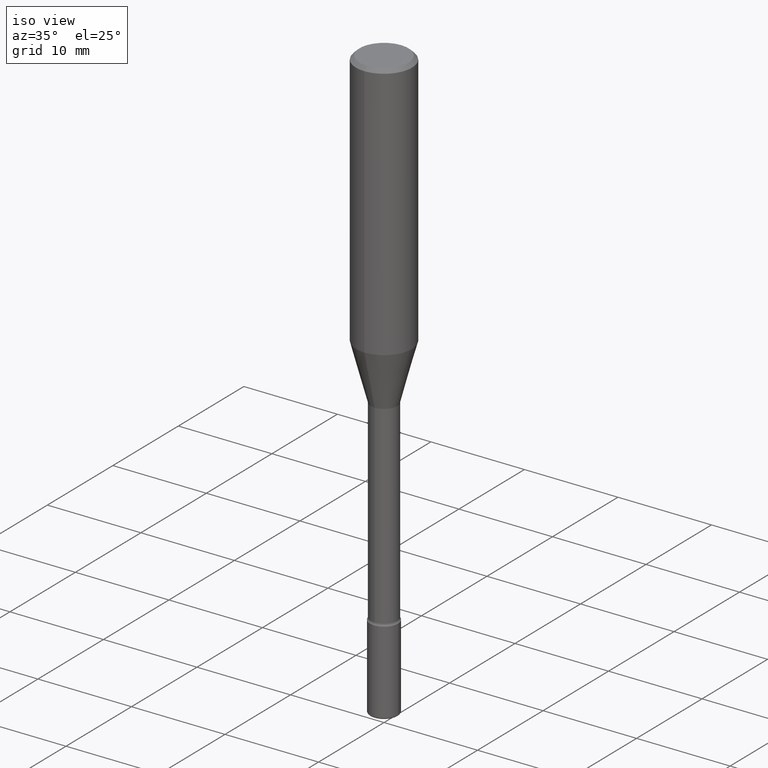
[diagram: clean part render]
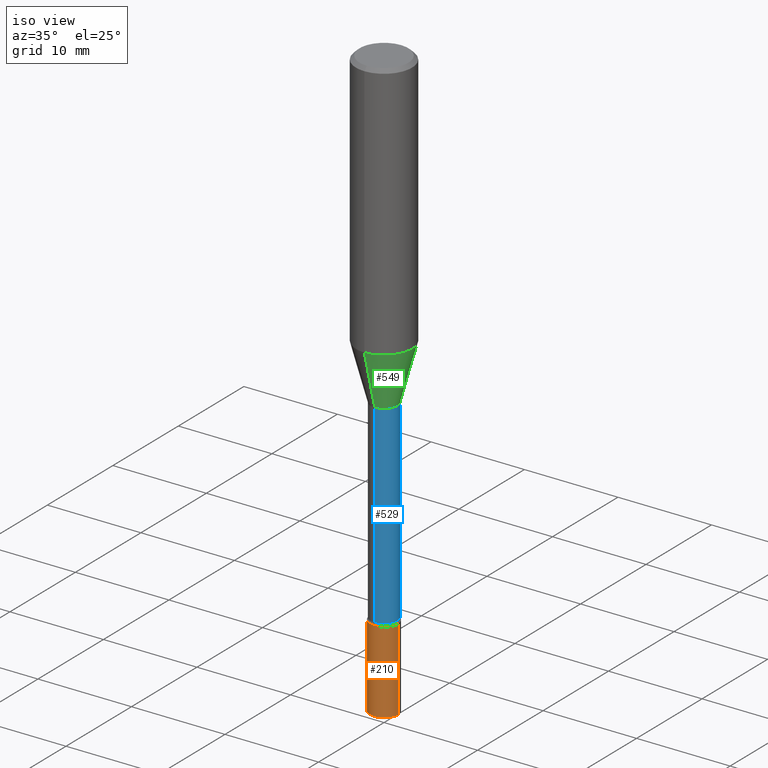
[diagram: same view with three faces highlighted in distinct colors, each labeled with its STEP entity id]
A machine part, iso view with three faces highlighted in distinct colors.
Their STEP definitions:

[orange] entity #210 — the highlighted cylindrical surface (edge-blend (fillet) strip) has radius 1.4999 mm, axis along (-0, 0, 1).
#7 = VERTEX_POINT ( 'NONE', #312 ) ;
#10 = CARTESIAN_POINT ( 'NONE',  ( 0.05905000000000005383, -9.113464590648378529E-15, -2.492100000000000648 ) ) ;
#24 = CARTESIAN_POINT ( 'NONE',  ( -0.05904999999999999832, -7.676820591177032402E-15, -2.145700000000000163 ) ) ;
#26 = EDGE_CURVE ( 'NONE', #72, #250, #141, .T. ) ;
#34 = ORIENTED_EDGE ( 'NONE', *, *, #26, .F. ) ;
#72 = VERTEX_POINT ( 'NONE', #227 ) ;
#80 = EDGE_CURVE ( 'NONE', #472, #7, #316, .T. ) ;
#85 = VECTOR ( 'NONE', #256, 39.37007874015748143 ) ;
#122 = CARTESIAN_POINT ( 'NONE',  ( 0.000000000000000000, 0.000000000000000000, 0.000000000000000000 ) ) ;
#135 = DIRECTION ( 'NONE',  ( 1.000000000000000000, -6.982962677686266711E-15, 4.876176775795936353E-29 ) ) ;
#141 = LINE ( 'NONE', #304, #394 ) ;
#142 = CARTESIAN_POINT ( 'NONE',  ( 5.247242417431447608E-29, -7.491671508755737816E-15, -2.145700000000000163 ) ) ;
#173 = ORIENTED_EDGE ( 'NONE', *, *, #226, .T. ) ;
#184 = DIRECTION ( 'NONE',  ( -2.445468806185136597E-29, 3.491481338843145583E-15, 1.000000000000000000 ) ) ;
#207 = CYLINDRICAL_SURFACE ( 'NONE', #477, 0.05904999999999999832 ) ;
#210 = ADVANCED_FACE ( 'NONE', ( #461 ), #207, .T. ) ;
#212 = DIRECTION ( 'NONE',  ( -2.445468806185136597E-29, 3.491481338843145583E-15, 1.000000000000000000 ) ) ;
#217 = ORIENTED_EDGE ( 'NONE', *, *, #457, .F. ) ;
#226 = EDGE_CURVE ( 'NONE', #72, #472, #440, .T. ) ;
#227 = CARTESIAN_POINT ( 'NONE',  ( -0.05905000000000005383, -8.281545159064664904E-15, -2.492100000000000648 ) ) ;
#237 = CIRCLE ( 'NONE', #396, 0.05904999999999999832 ) ;
#250 = VERTEX_POINT ( 'NONE', #24 ) ;
#256 = DIRECTION ( 'NONE',  ( -2.445468806185136877E-29, 3.491481338843145188E-15, 1.000000000000000000 ) ) ;
#282 = DIRECTION ( 'NONE',  ( -2.445468806185136597E-29, 3.491481338843145583E-15, 1.000000000000000000 ) ) ;
#304 = CARTESIAN_POINT ( 'NONE',  ( -0.05904999999999999832, 4.195754854663391478E-16, -2.904631170795521892E-30 ) ) ;
#309 = CARTESIAN_POINT ( 'NONE',  ( 6.094352811893979937E-29, -8.701120644531004397E-15, -2.492100000000000648 ) ) ;
#312 = CARTESIAN_POINT ( 'NONE',  ( 0.05904999999999999832, -7.904015454873111947E-15, -2.145700000000000163 ) ) ;
#316 = LINE ( 'NONE', #485, #85 ) ;
#348 = DIRECTION ( 'NONE',  ( -2.445468806185136877E-29, 3.491481338843145188E-15, 1.000000000000000000 ) ) ;
#355 = DIRECTION ( 'NONE',  ( 1.000000000000000000, -6.982962677686273021E-15, 0.000000000000000000 ) ) ;
#394 = VECTOR ( 'NONE', #348, 39.37007874015748143 ) ;
#396 = AXIS2_PLACEMENT_3D ( 'NONE', #142, #184, #355 ) ;
#440 = CIRCLE ( 'NONE', #504, 0.05904999999999999832 ) ;
#450 = DIRECTION ( 'NONE',  ( 1.000000000000000000, -6.982962677686256455E-15, 0.000000000000000000 ) ) ;
#457 = EDGE_CURVE ( 'NONE', #250, #7, #237, .T. ) ;
#461 = FACE_OUTER_BOUND ( 'NONE', #470, .T. ) ;
#470 = EDGE_LOOP ( 'NONE', ( #34, #173, #511, #217 ) ) ;
#472 = VERTEX_POINT ( 'NONE', #10 ) ;
#477 = AXIS2_PLACEMENT_3D ( 'NONE', #122, #212, #135 ) ;
#485 = CARTESIAN_POINT ( 'NONE',  ( 0.05904999999999999832, -4.123439461173740327E-16, 2.879382386107500220E-30 ) ) ;
#504 = AXIS2_PLACEMENT_3D ( 'NONE', #309, #282, #450 ) ;
#511 = ORIENTED_EDGE ( 'NONE', *, *, #80, .T. ) ;

[blue] entity #529 — the highlighted cylindrical surface (edge-blend (fillet) strip) has radius 1.4097 mm, axis along (-0, 0, 1).
#2 = VECTOR ( 'NONE', #45, 39.37007874015748143 ) ;
#4 = LINE ( 'NONE', #530, #2 ) ;
#32 = EDGE_LOOP ( 'NONE', ( #295, #125, #391, #338 ) ) ;
#45 = DIRECTION ( 'NONE',  ( -2.445314574720221172E-29, 3.491702207079214016E-15, 1.000000000000000000 ) ) ;
#86 = CARTESIAN_POINT ( 'NONE',  ( 4.069633519066500838E-16, 0.05549999999999261774, -2.136009927760847749 ) ) ;
#100 = CARTESIAN_POINT ( 'NONE',  ( 5.223216208100687058E-29, -7.458310579105662270E-15, -2.136009927760847305 ) ) ;
#104 = AXIS2_PLACEMENT_3D ( 'NONE', #100, #540, #233 ) ;
#125 = ORIENTED_EDGE ( 'NONE', *, *, #238, .T. ) ;
#134 = EDGE_CURVE ( 'NONE', #422, #220, #536, .T. ) ;
#138 = CARTESIAN_POINT ( 'NONE',  ( -3.875544286115555499E-16, -0.05550000000000462202, -1.320874787463810707 ) ) ;
#154 = CIRCLE ( 'NONE', #434, 0.05550000000000001460 ) ;
#188 = DIRECTION ( 'NONE',  ( -2.445314574720221452E-29, 3.491702207079214016E-15, 1.000000000000000000 ) ) ;
#192 = DIRECTION ( 'NONE',  ( -2.445314574720221172E-29, 3.491702207079214016E-15, 1.000000000000000000 ) ) ;
#220 = VERTEX_POINT ( 'NONE', #86 ) ;
#225 = VERTEX_POINT ( 'NONE', #138 ) ;
#233 = DIRECTION ( 'NONE',  ( -6.982962677686265922E-15, -1.000000000000000000, 4.922248637232899302E-15 ) ) ;
#238 = EDGE_CURVE ( 'NONE', #220, #353, #499, .T. ) ;
#243 = CARTESIAN_POINT ( 'NONE',  ( 3.943512183469081661E-16, 0.05549999999999540023, -1.320874787463811373 ) ) ;
#262 = DIRECTION ( 'NONE',  ( -6.982962677686265922E-15, -1.000000000000000000, 3.491702207079214016E-15 ) ) ;
#272 = EDGE_CURVE ( 'NONE', #225, #353, #154, .T. ) ;
#295 = ORIENTED_EDGE ( 'NONE', *, *, #134, .T. ) ;
#296 = FACE_OUTER_BOUND ( 'NONE', #32, .T. ) ;
#307 = AXIS2_PLACEMENT_3D ( 'NONE', #313, #352, #262 ) ;
#313 = CARTESIAN_POINT ( 'NONE',  ( -1.169113584055446105E-44, 1.669184350826100908E-30, 4.780733988912460139E-16 ) ) ;
#324 = VECTOR ( 'NONE', #192, 39.37007874015748143 ) ;
#332 = DIRECTION ( 'NONE',  ( -6.982962677686265922E-15, -1.000000000000000000, 4.922248637232905613E-15 ) ) ;
#338 = ORIENTED_EDGE ( 'NONE', *, *, #570, .F. ) ;
#352 = DIRECTION ( 'NONE',  ( -2.445314574720221452E-29, 3.491702207079214016E-15, 1.000000000000000000 ) ) ;
#353 = VERTEX_POINT ( 'NONE', #243 ) ;
#391 = ORIENTED_EDGE ( 'NONE', *, *, #272, .F. ) ;
#422 = VERTEX_POINT ( 'NONE', #431 ) ;
#431 = CARTESIAN_POINT ( 'NONE',  ( -3.875544286115360749E-16, -0.05550000000000754330, -2.136009927760847305 ) ) ;
#434 = AXIS2_PLACEMENT_3D ( 'NONE', #550, #188, #332 ) ;
#468 = CYLINDRICAL_SURFACE ( 'NONE', #307, 0.05550000000000004929 ) ;
#499 = LINE ( 'NONE', #542, #324 ) ;
#529 = ADVANCED_FACE ( 'NONE', ( #296 ), #468, .T. ) ;
#530 = CARTESIAN_POINT ( 'NONE',  ( -3.875544286115880904E-16, -0.05550000000000004929, 6.718628713841425539E-16 ) ) ;
#536 = CIRCLE ( 'NONE', #104, 0.05550000000000008399 ) ;
#540 = DIRECTION ( 'NONE',  ( -2.445314574720221452E-29, 3.491702207079214016E-15, 1.000000000000000000 ) ) ;
#542 = CARTESIAN_POINT ( 'NONE',  ( 3.943512183468558548E-16, 0.05550000000000004929, 2.842839263983495232E-16 ) ) ;
#550 = CARTESIAN_POINT ( 'NONE',  ( 3.229954369165731744E-29, -4.612101410662676179E-15, -1.320874787463810929 ) ) ;
#570 = EDGE_CURVE ( 'NONE', #422, #225, #4, .T. ) ;

[green] entity #549 — the highlighted conical surface has half-angle 15 deg.
#1 = VECTOR ( 'NONE', #241, 39.37007874015748143 ) ;
#6 = CARTESIAN_POINT ( 'NONE',  ( 3.220460959417665931E-29, -4.598545625197397204E-15, -1.316992501787273007 ) ) ;
#21 = EDGE_CURVE ( 'NONE', #265, #319, #160, .T. ) ;
#25 = CARTESIAN_POINT ( 'NONE',  ( -8.246878922347212441E-16, -0.1181000000000037714, -1.085273619446188276 ) ) ;
#39 = DIRECTION ( 'NONE',  ( -2.445314574720221452E-29, 3.491702207079214016E-15, 1.000000000000000000 ) ) ;
#41 = ORIENTED_EDGE ( 'NONE', *, *, #521, .F. ) ;
#50 = ORIENTED_EDGE ( 'NONE', *, *, #118, .F. ) ;
#62 = CARTESIAN_POINT ( 'NONE',  ( 3.979828918379874177E-16, 0.05601111260565939248, -1.316992501787273229 ) ) ;
#67 = LINE ( 'NONE', #456, #1 ) ;
#91 = DIRECTION ( 'NONE',  ( -2.445314574720221452E-29, 3.491702207079214016E-15, 1.000000000000000000 ) ) ;
#118 = EDGE_CURVE ( 'NONE', #265, #202, #67, .T. ) ;
#136 = DIRECTION ( 'NONE',  ( -6.982962677686265922E-15, -1.000000000000000000, 4.877332133888037765E-15 ) ) ;
#155 = AXIS2_PLACEMENT_3D ( 'NONE', #567, #416, #513 ) ;
#160 = CIRCLE ( 'NONE', #388, 0.05601111260566399297 ) ;
#163 = EDGE_LOOP ( 'NONE', ( #347, #430, #41, #50 ) ) ;
#200 = CARTESIAN_POINT ( 'NONE',  ( -3.911235088610021883E-16, -0.05601111260566859346, -1.316992501787272785 ) ) ;
#202 = VERTEX_POINT ( 'NONE', #25 ) ;
#229 = EDGE_CURVE ( 'NONE', #319, #376, #505, .T. ) ;
#241 = DIRECTION ( 'NONE',  ( -1.807323732225328167E-15, -0.2588190451025179084, 0.9659258262890690894 ) ) ;
#249 = CONICAL_SURFACE ( 'NONE', #373, 0.05601111260566399297, 0.2617993877991499629 ) ;
#265 = VERTEX_POINT ( 'NONE', #200 ) ;
#284 = CARTESIAN_POINT ( 'NONE',  ( 8.391509709327049197E-16, 0.1180999999999962358, -1.085273619446189164 ) ) ;
#319 = VERTEX_POINT ( 'NONE', #359 ) ;
#347 = ORIENTED_EDGE ( 'NONE', *, *, #21, .T. ) ;
#359 = CARTESIAN_POINT ( 'NONE',  ( 6.185669313853460208E-16, 0.05601111260565939248, -1.316992501787273229 ) ) ;
#362 = DIRECTION ( 'NONE',  ( 1.839019923739597949E-15, 0.2588190451025246253, 0.9659258262890670910 ) ) ;
#373 = AXIS2_PLACEMENT_3D ( 'NONE', #6, #91, #386 ) ;
#376 = VERTEX_POINT ( 'NONE', #284 ) ;
#386 = DIRECTION ( 'NONE',  ( -6.982962677686265922E-15, -1.000000000000000000, 4.877332133888037765E-15 ) ) ;
#388 = AXIS2_PLACEMENT_3D ( 'NONE', #531, #39, #136 ) ;
#416 = DIRECTION ( 'NONE',  ( -2.445314574720221452E-29, 3.491702207079214016E-15, 1.000000000000000000 ) ) ;
#430 = ORIENTED_EDGE ( 'NONE', *, *, #229, .T. ) ;
#456 = CARTESIAN_POINT ( 'NONE',  ( -3.911235088610021883E-16, -0.05601111260566859346, -1.316992501787272785 ) ) ;
#469 = CIRCLE ( 'NONE', #155, 0.1180999999999999966 ) ;
#505 = LINE ( 'NONE', #62, #516 ) ;
#513 = DIRECTION ( 'NONE',  ( -6.982962677686265922E-15, -1.000000000000000000, 3.469747663417777397E-15 ) ) ;
#516 = VECTOR ( 'NONE', #362, 39.37007874015748854 ) ;
#521 = EDGE_CURVE ( 'NONE', #202, #376, #469, .T. ) ;
#531 = CARTESIAN_POINT ( 'NONE',  ( 3.220460959417665931E-29, -4.598545625197397204E-15, -1.316992501787273007 ) ) ;
#549 = ADVANCED_FACE ( 'NONE', ( #572 ), #249, .T. ) ;
#567 = CARTESIAN_POINT ( 'NONE',  ( 2.653835399191132044E-29, -3.789452292305104081E-15, -1.085273619446188720 ) ) ;
#572 = FACE_OUTER_BOUND ( 'NONE', #163, .T. ) ;